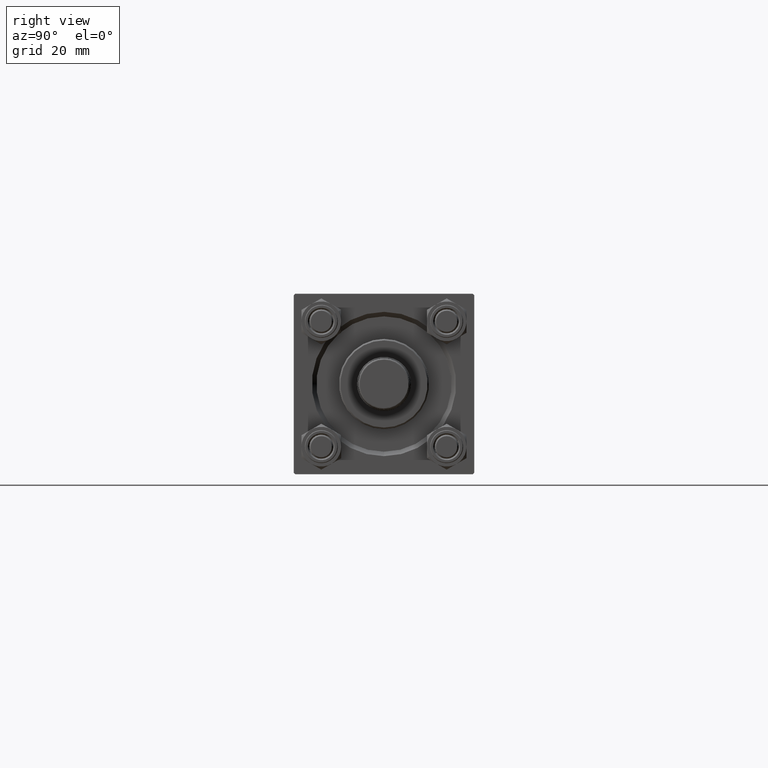
[diagram: clean part render]
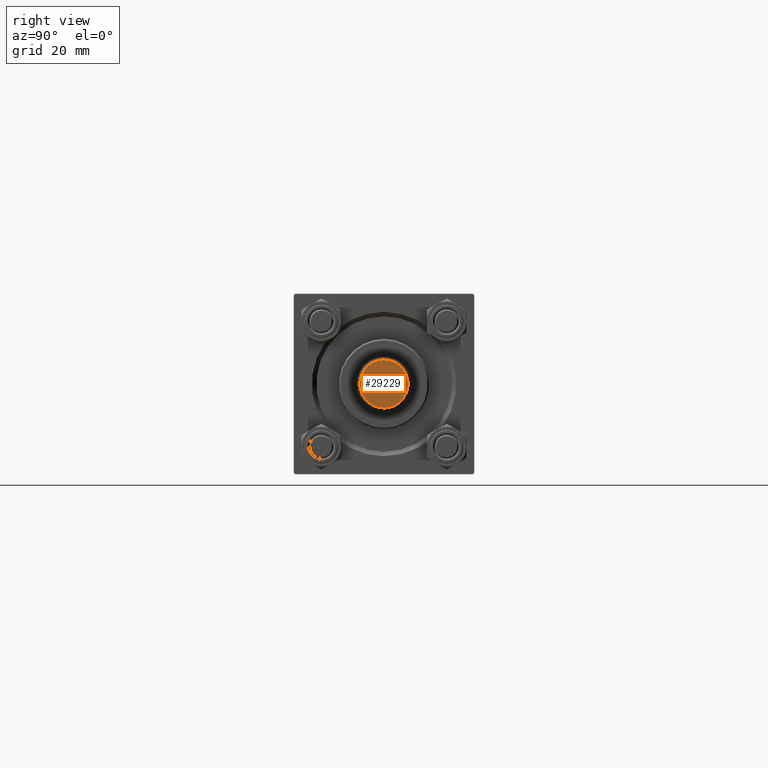
[diagram: same view with one face highlighted and labeled with its STEP entity id]
A machine part, right view. The second image highlights one B-rep face of the part: STEP entity #29229.
In plain terms, the highlighted planar face has unit normal (1, 0, 0).
Its self-contained STEP definition (entity closure, byte-faithful):
#1176 = EDGE_CURVE ( 'NONE', #39278, #46905, #37016, .T. ) ;
#2067 = DIRECTION ( 'NONE',  ( 1.000000000000000000, 0.000000000000000000, 0.000000000000000000 ) ) ;
#3183 = CARTESIAN_POINT ( 'NONE',  ( 0.000000000000000000, 0.000000000000000000, 0.000000000000000000 ) ) ;
#4378 = AXIS2_PLACEMENT_3D ( 'NONE', #36751, #47956, #13356 ) ;
#7908 = EDGE_CURVE ( 'NONE', #46905, #39278, #36379, .T. ) ;
#10336 = CARTESIAN_POINT ( 'NONE',  ( 8.000000000000000000, 0.000000000000000000, 0.000000000000000000 ) ) ;
#13244 = CARTESIAN_POINT ( 'NONE',  ( 0.000000000000000000, 0.000000000000000000, 0.000000000000000000 ) ) ;
#13356 = DIRECTION ( 'NONE',  ( 1.000000000000000000, 0.000000000000000000, -0.000000000000000000 ) ) ;
#24043 = AXIS2_PLACEMENT_3D ( 'NONE', #13244, #25203, #2067 ) ;
#25020 = CARTESIAN_POINT ( 'NONE',  ( -8.000000000000000000, 1.010333609296566550E-15, 0.000000000000000000 ) ) ;
#25203 = DIRECTION ( 'NONE',  ( 0.000000000000000000, 0.000000000000000000, 1.000000000000000000 ) ) ;
#29229 = ADVANCED_FACE ( 'NONE', ( #32693 ), #35995, .T. ) ;
#29921 = EDGE_LOOP ( 'NONE', ( #33684, #37598 ) ) ;
#32693 = FACE_OUTER_BOUND ( 'NONE', #29921, .T. ) ;
#33684 = ORIENTED_EDGE ( 'NONE', *, *, #7908, .T. ) ;
#33949 = DIRECTION ( 'NONE',  ( 0.000000000000000000, 0.000000000000000000, 1.000000000000000000 ) ) ;
#35995 = PLANE ( 'NONE',  #4378 ) ;
#36379 = CIRCLE ( 'NONE', #48598, 8.000000000000000000 ) ;
#36751 = CARTESIAN_POINT ( 'NONE',  ( 0.000000000000000000, 0.000000000000000000, 0.000000000000000000 ) ) ;
#37016 = CIRCLE ( 'NONE', #24043, 8.000000000000000000 ) ;
#37598 = ORIENTED_EDGE ( 'NONE', *, *, #1176, .T. ) ;
#37760 = DIRECTION ( 'NONE',  ( 1.000000000000000000, 0.000000000000000000, 0.000000000000000000 ) ) ;
#39278 = VERTEX_POINT ( 'NONE', #25020 ) ;
#46905 = VERTEX_POINT ( 'NONE', #10336 ) ;
#47956 = DIRECTION ( 'NONE',  ( 0.000000000000000000, 0.000000000000000000, 1.000000000000000000 ) ) ;
#48598 = AXIS2_PLACEMENT_3D ( 'NONE', #3183, #33949, #37760 ) ;